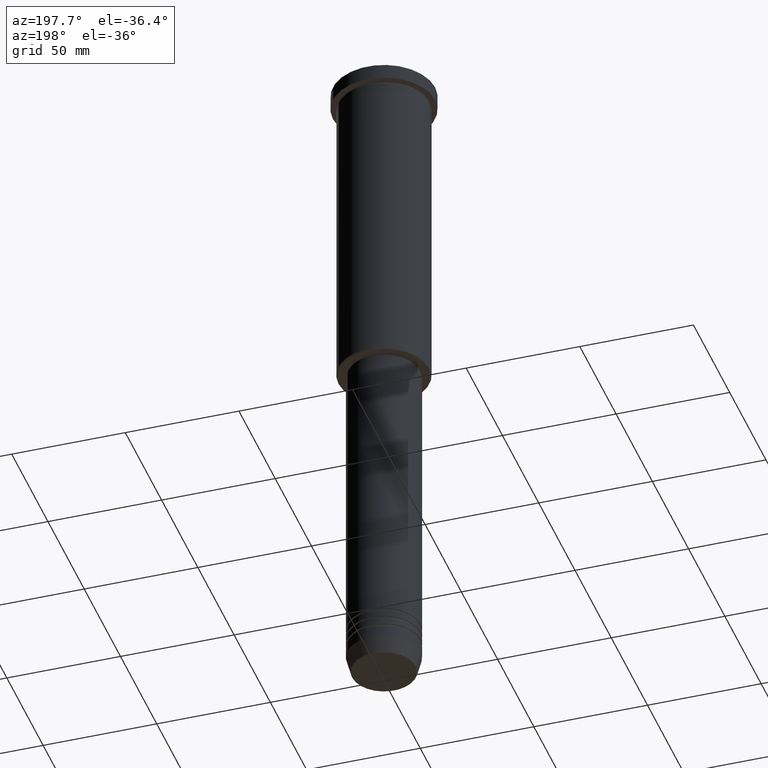
[diagram: clean part render]
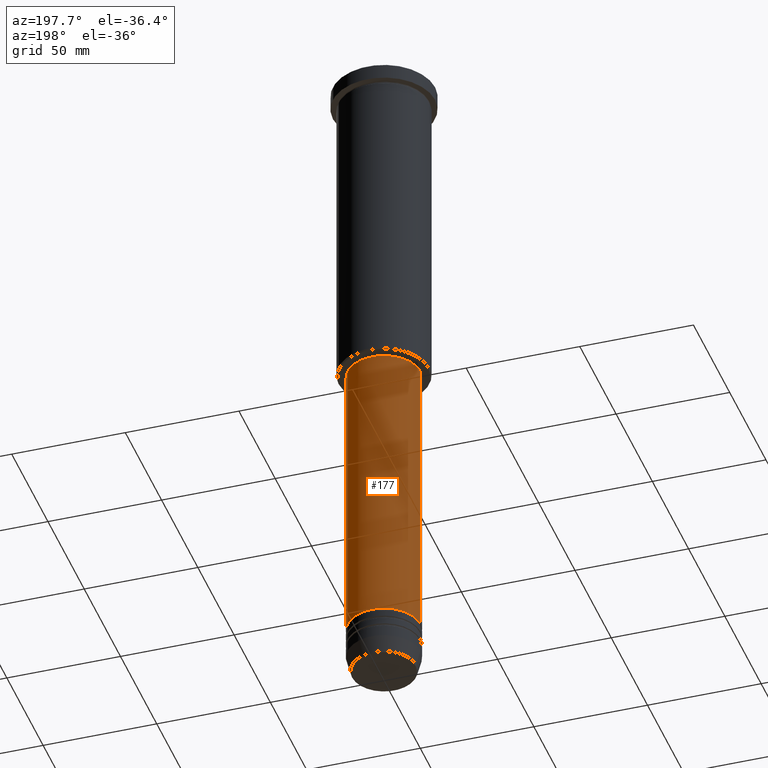
[diagram: same view with one face highlighted and labeled with its STEP entity id]
A machine part, auxiliary view. The second image highlights one B-rep face of the part: STEP entity #177.
In plain terms, the highlighted cylindrical surface (partial cylindrical patch) has radius 16 mm, axis along (-0, -0, 1).
Its self-contained STEP definition (entity closure, byte-faithful):
#129 = AXIS2_PLACEMENT_3D ( 'NONE', #176, #365, #755 ) ;
#176 = CARTESIAN_POINT ( 'NONE',  ( 0.000000000000000000, 0.000000000000000000, -278.4999999999999432 ) ) ;
#177 = ADVANCED_FACE ( 'NONE', ( #1122 ), #881, .T. ) ;
#286 = EDGE_CURVE ( 'NONE', #402, #478, #377, .T. ) ;
#293 = CARTESIAN_POINT ( 'NONE',  ( -16.00000000000000000, 1.959434878635765131E-15, -147.0000000000000000 ) ) ;
#321 = VECTOR ( 'NONE', #843, 1000.000000000000000 ) ;
#336 = ORIENTED_EDGE ( 'NONE', *, *, #811, .F. ) ;
#365 = DIRECTION ( 'NONE',  ( -0.000000000000000000, -0.000000000000000000, 1.000000000000000000 ) ) ;
#374 = ORIENTED_EDGE ( 'NONE', *, *, #733, .T. ) ;
#377 = CIRCLE ( 'NONE', #129, 16.00000000000000000 ) ;
#399 = DIRECTION ( 'NONE',  ( -0.000000000000000000, -0.000000000000000000, 1.000000000000000000 ) ) ;
#402 = VERTEX_POINT ( 'NONE', #1102 ) ;
#412 = CARTESIAN_POINT ( 'NONE',  ( 0.000000000000000000, 0.000000000000000000, 0.000000000000000000 ) ) ;
#472 = VERTEX_POINT ( 'NONE', #293 ) ;
#478 = VERTEX_POINT ( 'NONE', #685 ) ;
#519 = CARTESIAN_POINT ( 'NONE',  ( 16.00000000000000000, 0.000000000000000000, 0.000000000000000000 ) ) ;
#669 = CARTESIAN_POINT ( 'NONE',  ( 0.000000000000000000, 0.000000000000000000, -147.0000000000000000 ) ) ;
#682 = CARTESIAN_POINT ( 'NONE',  ( 16.00000000000000000, 0.000000000000000000, -147.0000000000000000 ) ) ;
#685 = CARTESIAN_POINT ( 'NONE',  ( -16.00000000000000000, 1.959434878635765131E-15, -278.4999999999999432 ) ) ;
#721 = DIRECTION ( 'NONE',  ( -0.000000000000000000, -0.000000000000000000, 1.000000000000000000 ) ) ;
#723 = ORIENTED_EDGE ( 'NONE', *, *, #286, .T. ) ;
#733 = EDGE_CURVE ( 'NONE', #478, #472, #764, .T. ) ;
#755 = DIRECTION ( 'NONE',  ( 1.000000000000000000, 0.000000000000000000, 0.000000000000000000 ) ) ;
#764 = LINE ( 'NONE', #852, #321 ) ;
#774 = VERTEX_POINT ( 'NONE', #682 ) ;
#787 = DIRECTION ( 'NONE',  ( 1.000000000000000000, 0.000000000000000000, 0.000000000000000000 ) ) ;
#811 = EDGE_CURVE ( 'NONE', #402, #774, #1137, .T. ) ;
#843 = DIRECTION ( 'NONE',  ( -0.000000000000000000, -0.000000000000000000, 1.000000000000000000 ) ) ;
#852 = CARTESIAN_POINT ( 'NONE',  ( -16.00000000000000000, 1.959434878635765131E-15, 0.000000000000000000 ) ) ;
#881 = CYLINDRICAL_SURFACE ( 'NONE', #986, 16.00000000000000000 ) ;
#916 = VECTOR ( 'NONE', #721, 1000.000000000000000 ) ;
#971 = CIRCLE ( 'NONE', #991, 16.00000000000000000 ) ;
#986 = AXIS2_PLACEMENT_3D ( 'NONE', #412, #399, #787 ) ;
#991 = AXIS2_PLACEMENT_3D ( 'NONE', #669, #1013, #1067 ) ;
#1004 = EDGE_LOOP ( 'NONE', ( #723, #374, #1032, #336 ) ) ;
#1013 = DIRECTION ( 'NONE',  ( -0.000000000000000000, -0.000000000000000000, 1.000000000000000000 ) ) ;
#1032 = ORIENTED_EDGE ( 'NONE', *, *, #1176, .F. ) ;
#1067 = DIRECTION ( 'NONE',  ( 1.000000000000000000, 0.000000000000000000, 0.000000000000000000 ) ) ;
#1102 = CARTESIAN_POINT ( 'NONE',  ( 16.00000000000000000, 0.000000000000000000, -278.4999999999999432 ) ) ;
#1122 = FACE_OUTER_BOUND ( 'NONE', #1004, .T. ) ;
#1137 = LINE ( 'NONE', #519, #916 ) ;
#1176 = EDGE_CURVE ( 'NONE', #774, #472, #971, .T. ) ;